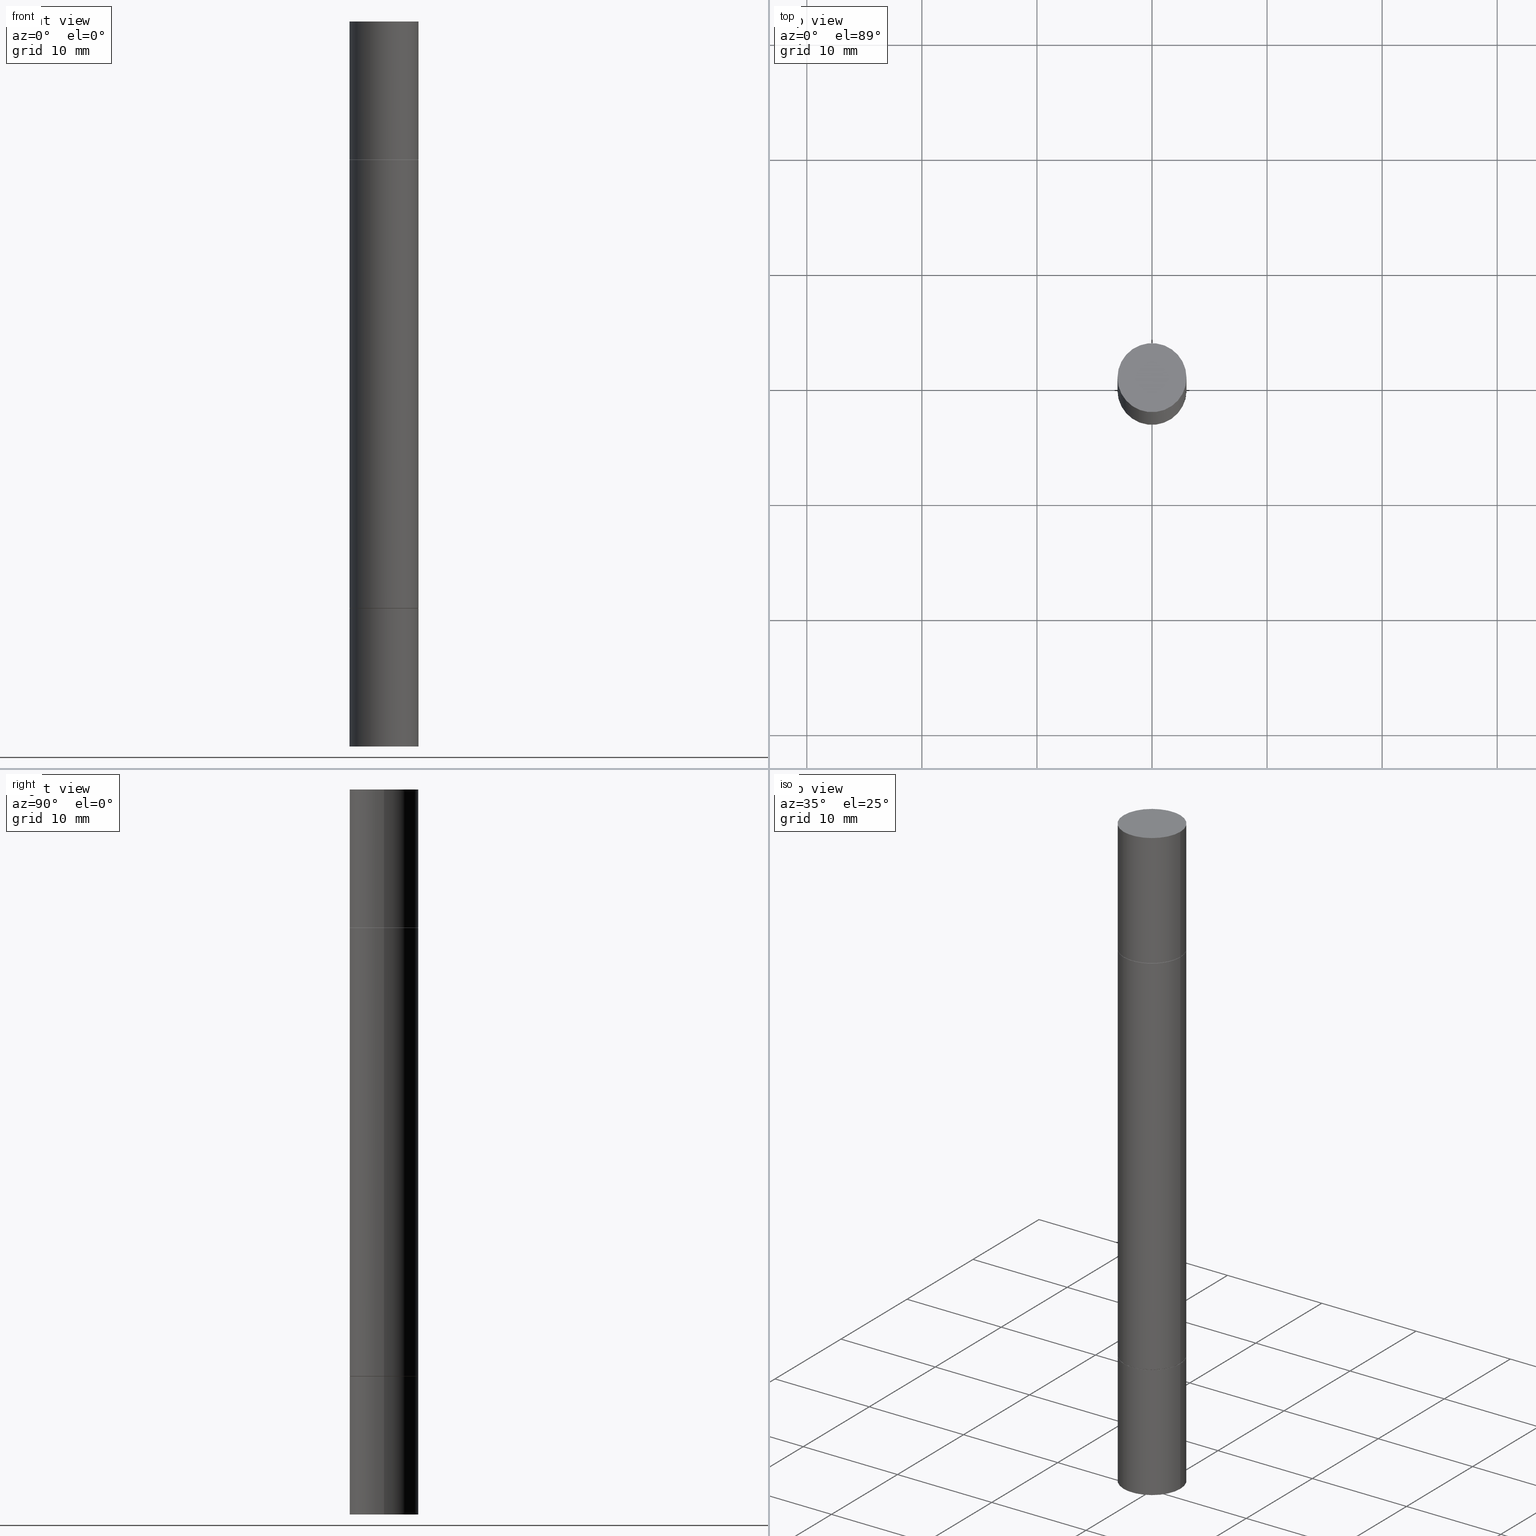
[diagram: canonical four-view strip — front | top / right | iso, engineering-drawing reading convention]
A machine part, canonical four-view strip (front | top / right | iso — engineering-drawing reading convention). The complete STEP part file that produces these views, byte-faithful:
ISO-10303-21;
HEADER;
FILE_DESCRIPTION (( 'STEP AP203' ),
    '1' );
FILE_NAME ('49019.STEP',
    '2024-03-04T15:50:55',
    ( '' ),
    ( '' ),
    'SwSTEP 2.0',
    'SolidWorks 2023',
    '' );
FILE_SCHEMA (( 'CONFIG_CONTROL_DESIGN' ));
ENDSEC;

DATA;
#1 = VERTEX_POINT ( 'NONE', #504 ) ;
#2 = CARTESIAN_POINT ( 'NONE',  ( 0.1180999999999999966, -7.831741791159056177E-15, -2.006899999999999906 ) ) ;
#3 = EDGE_CURVE ( 'NONE', #177, #436, #296, .T. ) ;
#4 = APPROVAL_ROLE ( '' ) ;
#5 = CIRCLE ( 'NONE', #286, 0.1180999999999999966 ) ;
#6 = CARTESIAN_POINT ( 'NONE',  ( 4.910256815939135870E-29, -7.010545380263151710E-15, -2.007899999999999796 ) ) ;
#7 = ORIENTED_EDGE ( 'NONE', *, *, #26, .T. ) ;
#8 = FACE_OUTER_BOUND ( 'NONE', #413, .T. ) ;
#9 = VERTEX_POINT ( 'NONE', #351 ) ;
#10 = AXIS2_PLACEMENT_3D ( 'NONE', #563, #81, #341 ) ;
#11 = APPROVAL_DATE_TIME ( #218, #265 ) ;
#12 = ORIENTED_EDGE ( 'NONE', *, *, #242, .T. ) ;
#13 = EDGE_CURVE ( 'NONE', #575, #223, #309, .T. ) ;
#14 = CARTESIAN_POINT ( 'NONE',  ( 0.000000000000000000, -8.661668626252231138E-15, -2.480299999999999727 ) ) ;
#15 = CARTESIAN_POINT ( 'NONE',  ( 8.246878922348086105E-16, 0.1180999999999913369, -2.480300000000001059 ) ) ;
#16 = ORIENTED_EDGE ( 'NONE', *, *, #170, .T. ) ;
#17 = VECTOR ( 'NONE', #569, 39.37007874015748143 ) ;
#18 = CARTESIAN_POINT ( 'NONE',  ( 0.1180999999999998856, -3.815561613072418896E-15, -1.240149999999999864 ) ) ;
#19 = DIRECTION ( 'NONE',  ( -2.445468806185136877E-29, -3.492890411551753071E-15, -1.000000000000000000 ) ) ;
#20 = ORIENTED_EDGE ( 'NONE', *, *, #366, .T. ) ;
#21 = DIRECTION ( 'NONE',  ( -2.445468806185136597E-29, 3.491481338843145583E-15, 1.000000000000000000 ) ) ;
#22 = ORIENTED_EDGE ( 'NONE', *, *, #353, .T. ) ;
#23 = EDGE_CURVE ( 'NONE', #625, #557, #329, .T. ) ;
#24 = CIRCLE ( 'NONE', #551, 0.1170999999999999958 ) ;
#25 = DIRECTION ( 'NONE',  ( 0.7071067811866199593, -7.407546758114499403E-15, -0.7071067811864750752 ) ) ;
#26 = EDGE_CURVE ( 'NONE', #1, #449, #138, .T. ) ;
#27 = CIRCLE ( 'NONE', #614, 0.1180999999999999966 ) ;
#28 = CC_DESIGN_APPROVAL ( #284, ( #502 ) ) ;
#29 = DATE_AND_TIME ( #40, #624 ) ;
#30 = CARTESIAN_POINT ( 'NONE',  ( 0.1180999999999999966, -9.486356518486979401E-15, -2.480299999999999727 ) ) ;
#31 = LINE ( 'NONE', #243, #192 ) ;
#32 = AXIS2_PLACEMENT_3D ( 'NONE', #302, #405, #258 ) ;
#33 = CARTESIAN_POINT ( 'NONE',  ( 0.1180999999999999966, -7.835233272497900762E-15, -2.007900000000000240 ) ) ;
#34 = AXIS2_PLACEMENT_3D ( 'NONE', #495, #21, #183 ) ;
#35 = DIRECTION ( 'NONE',  ( 2.438088387897960049E-29, -3.491481338843145188E-15, -1.000000000000000000 ) ) ;
#36 = DIRECTION ( 'NONE',  ( 1.000000000000000000, -6.982962677686265133E-15, 0.000000000000000000 ) ) ;
#37 = CARTESIAN_POINT ( 'NONE',  ( 4.910256815939136430E-29, -1.648293968897467768E-15, -0.4723999999999995980 ) ) ;
#38 = LINE ( 'NONE', #577, #335 ) ;
#39 = DIRECTION ( 'NONE',  ( 1.000000000000000000, -6.982962677686266711E-15, 4.876176775795936353E-29 ) ) ;
#40 = CALENDAR_DATE ( 2024, 4, 3 ) ;
#41 = DIRECTION ( 'NONE',  ( 1.000000000000000000, -6.982962677686265922E-15, 9.839502134516470631E-33 ) ) ;
#42 = VERTEX_POINT ( 'NONE', #397 ) ;
#43 = DIRECTION ( 'NONE',  ( 1.000000000000000000, -6.982962677686271444E-15, 0.000000000000000000 ) ) ;
#44 = ADVANCED_FACE ( 'NONE', ( #97 ), #450, .T. ) ;
#45 = ORIENTED_EDGE ( 'NONE', *, *, #395, .T. ) ;
#46 = DIRECTION ( 'NONE',  ( 1.000000000000000000, -6.982962677686265133E-15, 0.000000000000000000 ) ) ;
#47 = VERTEX_POINT ( 'NONE', #293 ) ;
#48 = DIRECTION ( 'NONE',  ( 1.000000000000000000, -6.982962677686265133E-15, 0.000000000000000000 ) ) ;
#49 = DIRECTION ( 'NONE',  ( -1.000000000000000000, 6.982962677686265922E-15, -9.839502134516470631E-33 ) ) ;
#50 = ORIENTED_EDGE ( 'NONE', *, *, #383, .F. ) ;
#51 = CIRCLE ( 'NONE', #566, 0.1180999999999999966 ) ;
#52 = PRODUCT_DEFINITION ( 'UNKNOWN', '', #502, #635 ) ;
#53 = CARTESIAN_POINT ( 'NONE',  ( 0.1180999999999999966, -2.476474751543767778E-15, -0.4733999999999996544 ) ) ;
#54 = COORDINATED_UNIVERSAL_TIME_OFFSET ( 5, 0, .BEHIND. ) ;
#55 = ORIENTED_EDGE ( 'NONE', *, *, #489, .F. ) ;
#56 = APPROVAL_STATUS ( 'not_yet_approved' ) ;
#57 = AXIS2_PLACEMENT_3D ( 'NONE', #403, #408, #150 ) ;
#58 = ORIENTED_EDGE ( 'NONE', *, *, #543, .T. ) ;
#59 = DATE_AND_TIME ( #325, #337 ) ;
#60 = ORIENTED_EDGE ( 'NONE', *, *, #83, .T. ) ;
#61 = CLOSED_SHELL ( 'NONE', ( #564, #663, #561, #365 ) ) ;
#62 = CARTESIAN_POINT ( 'NONE',  ( 4.910256815939135870E-29, -7.010545380263151710E-15, -2.007899999999999796 ) ) ;
#63 = CARTESIAN_POINT ( 'NONE',  ( 6.065496279980994755E-29, 1.747461519580534218E-18, 5.463695987328526437E-16 ) ) ;
#64 = CARTESIAN_POINT ( 'NONE',  ( -0.1180999999999999966, -1.304844015212474234E-17, 5.463695987328556019E-16 ) ) ;
#65 = CC_DESIGN_PERSON_AND_ORGANIZATION_ASSIGNMENT ( #277, #420, ( #253 ) ) ;
#66 = ORIENTED_EDGE ( 'NONE', *, *, #543, .F. ) ;
#67 = MANIFOLD_SOLID_BREP ( 'Mirror1[1]', #244 ) ;
#68 = DIRECTION ( 'NONE',  ( 1.000000000000000000, -6.982962677686264344E-15, 0.000000000000000000 ) ) ;
#69 = PERSON_AND_ORGANIZATION_ROLE ( 'creator' ) ;
#70 = MANIFOLD_SOLID_BREP ( 'Combine1', #113 ) ;
#71 = DIRECTION ( 'NONE',  ( 1.000000000000000000, -6.982962677686265133E-15, 0.000000000000000000 ) ) ;
#72 = ORIENTED_EDGE ( 'NONE', *, *, #646, .F. ) ;
#73 = AXIS2_PLACEMENT_3D ( 'NONE', #651, #179, #318 ) ;
#74 = DIRECTION ( 'NONE',  ( 1.000000000000000000, -6.982962677686265133E-15, 0.000000000000000000 ) ) ;
#75 = PLANE ( 'NONE',  #178 ) ;
#76 = ORIENTED_EDGE ( 'NONE', *, *, #110, .T. ) ;
#77 = CC_DESIGN_PERSON_AND_ORGANIZATION_ASSIGNMENT ( #612, #349, ( #615 ) ) ;
#78 = ORIENTED_EDGE ( 'NONE', *, *, #373, .F. ) ;
#79 = CLOSED_SHELL ( 'NONE', ( #528, #332, #461, #44 ) ) ;
#80 = CARTESIAN_POINT ( 'NONE',  ( 0.1170999999999999958, -2.465998898454530016E-15, -0.4723999999999998756 ) ) ;
#81 = DIRECTION ( 'NONE',  ( 2.445468806185136597E-29, 3.492890411551752677E-15, 1.000000000000000000 ) ) ;
#82 = CIRCLE ( 'NONE', #324, 0.1180999999999999966 ) ;
#83 = EDGE_CURVE ( 'NONE', #223, #575, #669, .T. ) ;
#84 = CARTESIAN_POINT ( 'NONE',  ( 0.1180999999999999966, -2.472981861132215636E-15, -0.4723999999999995980 ) ) ;
#85 = PERSON_AND_ORGANIZATION ( #423, #591 ) ;
#86 = VECTOR ( 'NONE', #25, 39.37007874015748143 ) ;
#87 = DIRECTION ( 'NONE',  ( -2.445468806185136597E-29, -3.492890411551752677E-15, -1.000000000000000000 ) ) ;
#88 = APPROVAL_DATE_TIME ( #513, #120 ) ;
#89 = DIRECTION ( 'NONE',  ( 1.000000000000000000, -6.982962677686265133E-15, 0.000000000000000000 ) ) ;
#90 = DIRECTION ( 'NONE',  ( -2.445468806185136597E-29, 3.491481338843145583E-15, 1.000000000000000000 ) ) ;
#91 = CARTESIAN_POINT ( 'NONE',  ( 8.246878922348086105E-16, 0.1181000000000000105, 0.000000000000000000 ) ) ;
#92 = DIRECTION ( 'NONE',  ( -2.445468806185136877E-29, -3.492890411551753071E-15, -1.000000000000000000 ) ) ;
#93 = CIRCLE ( 'NONE', #536, 0.1180999999999999966 ) ;
#94 = DIRECTION ( 'NONE',  ( 2.438088387897959769E-29, 3.492890411551753071E-15, 1.000000000000000000 ) ) ;
#95 = LOCAL_TIME ( 10, 50, 55.00000000000000000, #161 ) ;
#96 = LINE ( 'NONE', #254, #209 ) ;
#97 = FACE_OUTER_BOUND ( 'NONE', #338, .T. ) ;
#98 = CARTESIAN_POINT ( 'NONE',  ( 0.000000000000000000, -8.661668626252231138E-15, -2.480299999999999727 ) ) ;
#99 = DIRECTION ( 'NONE',  ( 1.000000000000000000, -6.982962677686264344E-15, 0.000000000000000000 ) ) ;
#100 = CARTESIAN_POINT ( 'NONE',  ( 0.000000000000000000, -8.661668626252231138E-15, -2.480299999999999727 ) ) ;
#101 = DIRECTION ( 'NONE',  ( 1.000000000000000000, 0.000000000000000000, 0.000000000000000000 ) ) ;
#102 = CIRCLE ( 'NONE', #375, 0.1180999999999999966 ) ;
#103 = DIRECTION ( 'NONE',  ( 2.445468806185136597E-29, 3.492890411551752677E-15, 1.000000000000000000 ) ) ;
#104 = DIRECTION ( 'NONE',  ( 1.000000000000000000, -6.982962677686264344E-15, 0.000000000000000000 ) ) ;
#105 = EDGE_LOOP ( 'NONE', ( #385, #679 ) ) ;
#106 = AXIS2_PLACEMENT_3D ( 'NONE', #401, #360, #104 ) ;
#107 = FACE_OUTER_BOUND ( 'NONE', #418, .T. ) ;
#108 = LINE ( 'NONE', #355, #17 ) ;
#109 = AXIS2_PLACEMENT_3D ( 'NONE', #15, #126, #432 ) ;
#110 = EDGE_CURVE ( 'NONE', #436, #596, #51, .T. ) ;
#111 = ORIENTED_EDGE ( 'NONE', *, *, #416, .T. ) ;
#112 = ORIENTED_EDGE ( 'NONE', *, *, #395, .F. ) ;
#113 = CLOSED_SHELL ( 'NONE', ( #232, #280, #374, #333, #340, #425, #637, #568 ) ) ;
#114 = CARTESIAN_POINT ( 'NONE',  ( 0.1180999999999999966, -2.472981861132215636E-15, -0.4723999999999995980 ) ) ;
#115 = ORIENTED_EDGE ( 'NONE', *, *, #273, .F. ) ;
#116 = COORDINATED_UNIVERSAL_TIME_OFFSET ( 5, 0, .BEHIND. ) ;
#117 = AXIS2_PLACEMENT_3D ( 'NONE', #194, #103, #621 ) ;
#118 = ORIENTED_EDGE ( 'NONE', *, *, #251, .F. ) ;
#119 = DIRECTION ( 'NONE',  ( 1.000000000000000000, -6.982962677686265133E-15, 0.000000000000000000 ) ) ;
#120 = APPROVAL ( #191, 'UNSPECIFIED' ) ;
#121 = DIRECTION ( 'NONE',  ( 2.445468806185136597E-29, 3.492890411551752677E-15, 1.000000000000000000 ) ) ;
#122 = ORIENTED_EDGE ( 'NONE', *, *, #326, .T. ) ;
#123 = AXIS2_PLACEMENT_3D ( 'NONE', #516, #344, #400 ) ;
#124 = EDGE_CURVE ( 'NONE', #473, #460, #202, .T. ) ;
#125 = CARTESIAN_POINT ( 'NONE',  ( 0.000000000000000000, -8.661668626252231138E-15, -2.480299999999999727 ) ) ;
#126 = DIRECTION ( 'NONE',  ( 2.438088387897960049E-29, -3.491481338843145188E-15, -1.000000000000000000 ) ) ;
#127 = EDGE_LOOP ( 'NONE', ( #382, #352 ) ) ;
#128 = CARTESIAN_POINT ( 'NONE',  ( 0.000000000000000000, -8.661668626252231138E-15, -2.480299999999999727 ) ) ;
#129 = FACE_OUTER_BOUND ( 'NONE', #402, .T. ) ;
#130 = ORIENTED_EDGE ( 'NONE', *, *, #556, .F. ) ;
#131 = AXIS2_PLACEMENT_3D ( 'NONE', #91, #511, #252 ) ;
#132 = EDGE_CURVE ( 'NONE', #259, #177, #411, .T. ) ;
#133 = APPROVAL_PERSON_ORGANIZATION ( #648, #265, #540 ) ;
#134 = CARTESIAN_POINT ( 'NONE',  ( 4.910256815939135870E-29, -1.648293968897468754E-15, -0.4723999999999998756 ) ) ;
#135 = CONICAL_SURFACE ( 'NONE', #106, 0.1170999999999999958, 0.7853981633975507526 ) ;
#136 = VECTOR ( 'NONE', #616, 39.37007874015748143 ) ;
#137 = DIRECTION ( 'NONE',  ( 2.445468806185136597E-29, 3.492890411551752677E-15, 1.000000000000000000 ) ) ;
#138 = LINE ( 'NONE', #245, #584 ) ;
#139 = CONICAL_SURFACE ( 'NONE', #315, 0.1170999999999999958, 0.7853981633975507526 ) ;
#140 = PERSON_AND_ORGANIZATION_ROLE ( 'creator' ) ;
#141 = DIRECTION ( 'NONE',  ( -2.445468806185136597E-29, -3.492890411551752677E-15, -1.000000000000000000 ) ) ;
#142 = APPLICATION_PROTOCOL_DEFINITION ( 'international standard', 'config_control_design', 1994, #510 ) ;
#143 = EDGE_LOOP ( 'NONE', ( #247, #464, #66, #631 ) ) ;
#144 = CARTESIAN_POINT ( 'NONE',  ( -0.1181000000000000105, -3.519735768829505001E-15, -2.006899999999999906 ) ) ;
#145 = CARTESIAN_POINT ( 'NONE',  ( -0.1180999999999998856, -7.851443812715415176E-15, -2.480299999999999727 ) ) ;
#146 = VERTEX_POINT ( 'NONE', #84 ) ;
#147 = DIRECTION ( 'NONE',  ( -2.445468806185136877E-29, -3.492890411551753071E-15, -1.000000000000000000 ) ) ;
#148 = EDGE_CURVE ( 'NONE', #619, #146, #102, .T. ) ;
#149 = CIRCLE ( 'NONE', #117, 0.1170999999999999958 ) ;
#150 = DIRECTION ( 'NONE',  ( 1.000000000000000000, -6.982962677686265922E-15, 4.876176775795935793E-29 ) ) ;
#151 = LINE ( 'NONE', #145, #570 ) ;
#152 = FACE_OUTER_BOUND ( 'NONE', #578, .T. ) ;
#153 = DIRECTION ( 'NONE',  ( 0.7071067811866199593, -7.407546758114499403E-15, -0.7071067811864750752 ) ) ;
#154 = ORIENTED_EDGE ( 'NONE', *, *, #439, .T. ) ;
#155 = DIRECTION ( 'NONE',  ( -1.000000000000000000, 6.982962677686265922E-15, -9.839502134516470631E-33 ) ) ;
#156 = DIRECTION ( 'NONE',  ( 2.445468806185136597E-29, 3.492890411551752677E-15, 1.000000000000000000 ) ) ;
#157 = ADVANCED_FACE ( 'NONE', ( #129 ), #75, .F. ) ;
#158 = DIRECTION ( 'NONE',  ( 2.445468806185136597E-29, 3.492890411551752677E-15, 1.000000000000000000 ) ) ;
#159 = AXIS2_PLACEMENT_3D ( 'NONE', #667, #94, #155 ) ;
#160 = DIRECTION ( 'NONE',  ( 1.000000000000000000, -6.982962677686271444E-15, 0.000000000000000000 ) ) ;
#161 = COORDINATED_UNIVERSAL_TIME_OFFSET ( 5, 0, .BEHIND. ) ;
#162 = ORIENTED_EDGE ( 'NONE', *, *, #384, .T. ) ;
#163 = CARTESIAN_POINT ( 'NONE',  ( 4.907811347132950827E-29, -1.651786859309018332E-15, -0.4733999999999996544 ) ) ;
#164 = VERTEX_POINT ( 'NONE', #234 ) ;
#165 = VECTOR ( 'NONE', #657, 39.37007874015748143 ) ;
#166 = DATE_TIME_ROLE ( 'creation_date' ) ;
#167 = CARTESIAN_POINT ( 'NONE',  ( 4.910256815939135870E-29, -1.648293968897468754E-15, -0.4723999999999998756 ) ) ;
#168 = CARTESIAN_POINT ( 'NONE',  ( 4.910256815939136430E-29, -7.010545380263152499E-15, -2.007900000000000240 ) ) ;
#169 = ORIENTED_EDGE ( 'NONE', *, *, #366, .F. ) ;
#170 = EDGE_CURVE ( 'NONE', #515, #535, #544, .T. ) ;
#171 = DIRECTION ( 'NONE',  ( 1.000000000000000000, -6.982962677686266711E-15, 0.000000000000000000 ) ) ;
#172 = AXIS2_PLACEMENT_3D ( 'NONE', #98, #307, #43 ) ;
#173 = DIRECTION ( 'NONE',  ( 1.000000000000000000, -6.982962677686264344E-15, 0.000000000000000000 ) ) ;
#174 = ORIENTED_EDGE ( 'NONE', *, *, #428, .T. ) ;
#175 = CYLINDRICAL_SURFACE ( 'NONE', #272, 0.1180999999999998856 ) ;
#176 = PERSON_AND_ORGANIZATION ( #423, #591 ) ;
#177 = VERTEX_POINT ( 'NONE', #652 ) ;
#178 = AXIS2_PLACEMENT_3D ( 'NONE', #289, #548, #336 ) ;
#179 = DIRECTION ( 'NONE',  ( 2.438088387897959769E-29, 3.492890411551753071E-15, 1.000000000000000000 ) ) ;
#180 = VECTOR ( 'NONE', #392, 39.37007874015748143 ) ;
#181 = EDGE_CURVE ( 'NONE', #557, #625, #507, .T. ) ;
#182 = ORIENTED_EDGE ( 'NONE', *, *, #221, .T. ) ;
#183 = DIRECTION ( 'NONE',  ( 1.000000000000000000, -6.982962677686264344E-15, 0.000000000000000000 ) ) ;
#184 = EDGE_LOOP ( 'NONE', ( #499, #590, #496, #275 ) ) ;
#185 = AXIS2_PLACEMENT_3D ( 'NONE', #196, #517, #455 ) ;
#186 = LINE ( 'NONE', #246, #180 ) ;
#187 = EDGE_LOOP ( 'NONE', ( #593, #182, #314, #643 ) ) ;
#188 = SHAPE_DEFINITION_REPRESENTATION ( #672, #310 ) ;
#189 = ADVANCED_FACE ( 'NONE', ( #281 ), #555, .T. ) ;
#190 = EDGE_CURVE ( 'NONE', #424, #9, #558, .T. ) ;
#191 = APPROVAL_STATUS ( 'not_yet_approved' ) ;
#192 = VECTOR ( 'NONE', #345, 39.37007874015748143 ) ;
#193 = CC_DESIGN_APPROVAL ( #265, ( #52 ) ) ;
#194 = CARTESIAN_POINT ( 'NONE',  ( 4.910256815939135870E-29, -1.648293968897468754E-15, -0.4723999999999998756 ) ) ;
#195 = LINE ( 'NONE', #399, #136 ) ;
#196 = CARTESIAN_POINT ( 'NONE',  ( 0.000000000000000000, 0.000000000000000000, 0.000000000000000000 ) ) ;
#197 = AXIS2_PLACEMENT_3D ( 'NONE', #520, #357, #571 ) ;
#198 = CC_DESIGN_PERSON_AND_ORGANIZATION_ASSIGNMENT ( #85, #305, ( #502 ) ) ;
#199 = PLANE ( 'NONE',  #159 ) ;
#200 = CARTESIAN_POINT ( 'NONE',  ( 8.246878922348086105E-16, 0.1181000000000000105, 0.000000000000000000 ) ) ;
#201 = EDGE_CURVE ( 'NONE', #164, #473, #559, .T. ) ;
#202 = LINE ( 'NONE', #442, #165 ) ;
#203 = AXIS2_PLACEMENT_3D ( 'NONE', #37, #457, #212 ) ;
#204 = AXIS2_PLACEMENT_3D ( 'NONE', #579, #300, #519 ) ;
#205 = CARTESIAN_POINT ( 'NONE',  ( 0.000000000000000000, -8.661668626252231138E-15, -2.480299999999999727 ) ) ;
#206 = LINE ( 'NONE', #626, #580 ) ;
#207 = CYLINDRICAL_SURFACE ( 'NONE', #185, 0.1180999999999999966 ) ;
#208 = CARTESIAN_POINT ( 'NONE',  ( 4.907811347132950827E-29, -1.651786859309018332E-15, -0.4733999999999996544 ) ) ;
#209 = VECTOR ( 'NONE', #237, 39.37007874015748143 ) ;
#210 = ORIENTED_EDGE ( 'NONE', *, *, #148, .T. ) ;
#211 = ADVANCED_FACE ( 'NONE', ( #421 ), #472, .T. ) ;
#212 = DIRECTION ( 'NONE',  ( 1.000000000000000000, -6.982962677686265133E-15, 0.000000000000000000 ) ) ;
#213 = AXIS2_PLACEMENT_3D ( 'NONE', #347, #90, #675 ) ;
#214 = LOCAL_TIME ( 10, 50, 55.00000000000000000, #301 ) ;
#215 = FACE_OUTER_BOUND ( 'NONE', #380, .T. ) ;
#216 = ORIENTED_EDGE ( 'NONE', *, *, #416, .F. ) ;
#217 = CARTESIAN_POINT ( 'NONE',  ( 0.000000000000000000, -8.661668626252231138E-15, -2.480299999999999727 ) ) ;
#218 = DATE_AND_TIME ( #480, #554 ) ;
#219 =( NAMED_UNIT ( * ) SI_UNIT ( $, .STERADIAN. ) SOLID_ANGLE_UNIT ( ) );
#220 = EDGE_LOOP ( 'NONE', ( #229, #50, #7, #58 ) ) ;
#221 = EDGE_CURVE ( 'NONE', #259, #596, #96, .T. ) ;
#222 = CARTESIAN_POINT ( 'NONE',  ( 0.1180999999999999966, -9.486356518486979401E-15, -2.480299999999999727 ) ) ;
#223 = VERTEX_POINT ( 'NONE', #441 ) ;
#224 = DIRECTION ( 'NONE',  ( -2.445468806185136597E-29, -3.492890411551752677E-15, -1.000000000000000000 ) ) ;
#225 = AXIS2_PLACEMENT_3D ( 'NONE', #163, #419, #119 ) ;
#226 = UNCERTAINTY_MEASURE_WITH_UNIT (LENGTH_MEASURE( 1.000000000000000082E-05 ), #541, 'distance_accuracy_value', 'NONE');
#227 = DIRECTION ( 'NONE',  ( -0.7071067811866199593, 2.381258160592016740E-15, -0.7071067811864750752 ) ) ;
#228 = MANIFOLD_SOLID_BREP ( 'Mirror1[4]', #79 ) ;
#229 = ORIENTED_EDGE ( 'NONE', *, *, #170, .F. ) ;
#230 = PLANE ( 'NONE',  #73 ) ;
#231 = ORIENTED_EDGE ( 'NONE', *, *, #201, .F. ) ;
#232 = ADVANCED_FACE ( 'NONE', ( #501 ), #377, .T. ) ;
#233 = ORIENTED_EDGE ( 'NONE', *, *, #445, .F. ) ;
#234 = CARTESIAN_POINT ( 'NONE',  ( 0.1170999999999999958, -2.465998898454530016E-15, -0.4723999999999998756 ) ) ;
#235 = VERTEX_POINT ( 'NONE', #33 ) ;
#236 = EDGE_CURVE ( 'NONE', #255, #535, #186, .T. ) ;
#237 = DIRECTION ( 'NONE',  ( -2.445468806185136877E-29, -3.492890411551753071E-15, -1.000000000000000000 ) ) ;
#238 = CONICAL_SURFACE ( 'NONE', #677, 0.1170999999999999958, 0.7853981633975507526 ) ;
#239 = FACE_OUTER_BOUND ( 'NONE', #105, .T. ) ;
#240 = APPROVAL_ROLE ( '' ) ;
#241 = DIRECTION ( 'NONE',  ( 2.445468806185136597E-29, 3.492890411551752677E-15, 1.000000000000000000 ) ) ;
#242 = EDGE_CURVE ( 'NONE', #535, #449, #617, .T. ) ;
#243 = CARTESIAN_POINT ( 'NONE',  ( 0.1170999999999999958, -7.828250309820213170E-15, -2.007899999999999796 ) ) ;
#244 = CLOSED_SHELL ( 'NONE', ( #448, #508, #157, #609, #211, #582 ) ) ;
#245 = CARTESIAN_POINT ( 'NONE',  ( 0.1180999999999998856, -9.486356518486979401E-15, -2.480299999999999727 ) ) ;
#246 = CARTESIAN_POINT ( 'NONE',  ( -0.1170999999999999958, -6.178499836688074522E-15, -2.007899999999999796 ) ) ;
#247 = ORIENTED_EDGE ( 'NONE', *, *, #527, .T. ) ;
#248 = VECTOR ( 'NONE', #227, 39.37007874015748143 ) ;
#249 = CIRCLE ( 'NONE', #225, 0.1180999999999999966 ) ;
#250 = CYLINDRICAL_SURFACE ( 'NONE', #465, 0.1180999999999999966 ) ;
#251 = EDGE_CURVE ( 'NONE', #424, #235, #195, .T. ) ;
#252 = DIRECTION ( 'NONE',  ( -1.000000000000000000, 6.982962677686265922E-15, -9.839502134516470631E-33 ) ) ;
#253 = PRODUCT ( '49019', '49019', '', ( #427 ) ) ;
#254 = CARTESIAN_POINT ( 'NONE',  ( -0.1180999999999999966, -7.851443812715413599E-15, -2.480299999999999727 ) ) ;
#255 = VERTEX_POINT ( 'NONE', #567 ) ;
#256 = FACE_OUTER_BOUND ( 'NONE', #521, .T. ) ;
#257 = DATE_TIME_ROLE ( 'classification_date' ) ;
#258 = DIRECTION ( 'NONE',  ( 1.000000000000000000, -6.982962677686264344E-15, 0.000000000000000000 ) ) ;
#259 = VERTEX_POINT ( 'NONE', #512 ) ;
#260 = FACE_OUTER_BOUND ( 'NONE', #608, .T. ) ;
#261 = CARTESIAN_POINT ( 'NONE',  ( 4.910256815939136430E-29, -7.010545380263152499E-15, -2.007900000000000240 ) ) ;
#262 = CIRCLE ( 'NONE', #343, 0.1180999999999999966 ) ;
#263 = CYLINDRICAL_SURFACE ( 'NONE', #172, 0.1180999999999998856 ) ;
#264 = ORIENTED_EDGE ( 'NONE', *, *, #556, .T. ) ;
#265 = APPROVAL ( #56, 'UNSPECIFIED' ) ;
#266 = DIRECTION ( 'NONE',  ( -2.438088387897959769E-29, -3.492890411551753071E-15, -1.000000000000000000 ) ) ;
#267 = AXIS2_PLACEMENT_3D ( 'NONE', #389, #604, #339 ) ;
#268 = CIRCLE ( 'NONE', #572, 0.1180999999999999966 ) ;
#269 = CALENDAR_DATE ( 2024, 4, 3 ) ;
#270 = APPLICATION_CONTEXT ( 'configuration controlled 3d designs of mechanical parts and assemblies' ) ;
#271 = ORIENTED_EDGE ( 'NONE', *, *, #148, .F. ) ;
#272 = AXIS2_PLACEMENT_3D ( 'NONE', #125, #330, #547 ) ;
#273 = EDGE_CURVE ( 'NONE', #146, #619, #611, .T. ) ;
#274 =( NAMED_UNIT ( * ) PLANE_ANGLE_UNIT ( ) SI_UNIT ( $, .RADIAN. ) );
#275 = ORIENTED_EDGE ( 'NONE', *, *, #242, .F. ) ;
#276 = CYLINDRICAL_SURFACE ( 'NONE', #477, 0.1180999999999998856 ) ;
#277 = PERSON_AND_ORGANIZATION ( #423, #591 ) ;
#278 = ORIENTED_EDGE ( 'NONE', *, *, #588, .F. ) ;
#279 = DIRECTION ( 'NONE',  ( -2.445468806185136597E-29, 3.491481338843145583E-15, 1.000000000000000000 ) ) ;
#280 = ADVANCED_FACE ( 'NONE', ( #152 ), #361, .T. ) ;
#281 = FACE_OUTER_BOUND ( 'NONE', #187, .T. ) ;
#282 = DIRECTION ( 'NONE',  ( -0.000000000000000000, -3.492185875197449130E-15, -1.000000000000000000 ) ) ;
#283 = ORIENTED_EDGE ( 'NONE', *, *, #251, .T. ) ;
#284 = APPROVAL ( #583, 'UNSPECIFIED' ) ;
#285 = CARTESIAN_POINT ( 'NONE',  ( -0.1170999999999999958, -8.449296533584223333E-16, -0.4723999999999998756 ) ) ;
#286 = AXIS2_PLACEMENT_3D ( 'NONE', #478, #538, #431 ) ;
#287 = ORIENTED_EDGE ( 'NONE', *, *, #23, .F. ) ;
#288 = DIRECTION ( 'NONE',  ( 1.000000000000000000, -6.982962677686264344E-15, 0.000000000000000000 ) ) ;
#289 = CARTESIAN_POINT ( 'NONE',  ( 0.000000000000000000, 0.000000000000000000, -1.240149999999999864 ) ) ;
#290 = ORIENTED_EDGE ( 'NONE', *, *, #110, .F. ) ;
#291 = CARTESIAN_POINT ( 'NONE',  ( -0.1180999999999999966, -8.415620457722018772E-16, -0.4733999999999996544 ) ) ;
#292 = CIRCLE ( 'NONE', #204, 0.1180999999999998856 ) ;
#293 = CARTESIAN_POINT ( 'NONE',  ( -0.1180999999999999966, -8.415620457722018772E-16, -0.4733999999999996544 ) ) ;
#294 = APPROVAL_PERSON_ORGANIZATION ( #587, #284, #4 ) ;
#295 = VERTEX_POINT ( 'NONE', #479 ) ;
#296 = LINE ( 'NONE', #30, #297 ) ;
#297 = VECTOR ( 'NONE', #147, 39.37007874015748143 ) ;
#298 = CARTESIAN_POINT ( 'NONE',  ( 4.910256815939135870E-29, -7.010545380263151710E-15, -2.007899999999999796 ) ) ;
#299 = FACE_OUTER_BOUND ( 'NONE', #127, .T. ) ;
#300 = DIRECTION ( 'NONE',  ( -0.000000000000000000, -3.492185875197449130E-15, -1.000000000000000000 ) ) ;
#301 = COORDINATED_UNIVERSAL_TIME_OFFSET ( 5, 0, .BEHIND. ) ;
#302 = CARTESIAN_POINT ( 'NONE',  ( 4.910256815939135870E-29, -1.648293968897468754E-15, -0.4723999999999998756 ) ) ;
#303 = PLANE ( 'NONE',  #602 ) ;
#304 = CARTESIAN_POINT ( 'NONE',  ( 4.910256815939136430E-29, -1.648293968897467768E-15, -0.4723999999999995980 ) ) ;
#305 = PERSON_AND_ORGANIZATION_ROLE ( 'design_supplier' ) ;
#306 = DIRECTION ( 'NONE',  ( 1.000000000000000000, -6.982962677686265133E-15, 0.000000000000000000 ) ) ;
#307 = DIRECTION ( 'NONE',  ( -2.445468806185136597E-29, -3.492890411551752677E-15, -1.000000000000000000 ) ) ;
#308 = CARTESIAN_POINT ( 'NONE',  ( 4.907811347132950827E-29, -1.651786859309018332E-15, -0.4733999999999996544 ) ) ;
#309 = CIRCLE ( 'NONE', #10, 0.1170999999999999958 ) ;
#310 = ADVANCED_BREP_SHAPE_REPRESENTATION ( '49019', ( #526, #67, #529, #228, #70, #415 ), #466 ) ;
#311 = ORIENTED_EDGE ( 'NONE', *, *, #588, .T. ) ;
#312 = FACE_OUTER_BOUND ( 'NONE', #636, .T. ) ;
#313 = DIRECTION ( 'NONE',  ( -2.445468806185136597E-29, 3.491481338843145583E-15, 1.000000000000000000 ) ) ;
#314 = ORIENTED_EDGE ( 'NONE', *, *, #489, .T. ) ;
#315 = AXIS2_PLACEMENT_3D ( 'NONE', #6, #481, #173 ) ;
#316 = CARTESIAN_POINT ( 'NONE',  ( -0.1180999999999999966, -1.304844015212474234E-17, -0.4723999999999995980 ) ) ;
#317 = CYLINDRICAL_SURFACE ( 'NONE', #437, 0.1180999999999999966 ) ;
#318 = DIRECTION ( 'NONE',  ( -1.000000000000000000, 6.982962677686265922E-15, -9.839502134516470631E-33 ) ) ;
#319 = ORIENTED_EDGE ( 'NONE', *, *, #458, .F. ) ;
#320 = CC_DESIGN_PERSON_AND_ORGANIZATION_ASSIGNMENT ( #176, #69, ( #52 ) ) ;
#321 = LINE ( 'NONE', #285, #662 ) ;
#322 = PLANE ( 'NONE',  #109 ) ;
#323 = ORIENTED_EDGE ( 'NONE', *, *, #539, .T. ) ;
#324 = AXIS2_PLACEMENT_3D ( 'NONE', #391, #137, #334 ) ;
#325 = CALENDAR_DATE ( 2024, 4, 3 ) ;
#326 = EDGE_CURVE ( 'NONE', #575, #515, #378, .T. ) ;
#327 = ORIENTED_EDGE ( 'NONE', *, *, #458, .T. ) ;
#328 = VERTEX_POINT ( 'NONE', #549 ) ;
#329 = CIRCLE ( 'NONE', #197, 0.1180999999999999966 ) ;
#330 = DIRECTION ( 'NONE',  ( -2.445468806185136597E-29, -3.492890411551752677E-15, -1.000000000000000000 ) ) ;
#331 = ORIENTED_EDGE ( 'NONE', *, *, #435, .F. ) ;
#332 = ADVANCED_FACE ( 'NONE', ( #239 ), #671, .T. ) ;
#333 = ADVANCED_FACE ( 'NONE', ( #404 ), #410, .F. ) ;
#334 = DIRECTION ( 'NONE',  ( 1.000000000000000000, -6.982962677686265133E-15, 0.000000000000000000 ) ) ;
#335 = VECTOR ( 'NONE', #354, 39.37007874015748143 ) ;
#336 = DIRECTION ( 'NONE',  ( 0.000000000000000000, 1.000000000000000000, -3.492185875197449524E-15 ) ) ;
#337 = LOCAL_TIME ( 10, 50, 55.00000000000000000, #116 ) ;
#338 = EDGE_LOOP ( 'NONE', ( #553, #492, #372, #586 ) ) ;
#339 = DIRECTION ( 'NONE',  ( 1.000000000000000000, -6.982962677686273021E-15, 0.000000000000000000 ) ) ;
#340 = ADVANCED_FACE ( 'NONE', ( #618 ), #135, .T. ) ;
#341 = DIRECTION ( 'NONE',  ( 1.000000000000000000, -6.982962677686264344E-15, 0.000000000000000000 ) ) ;
#342 = AXIS2_PLACEMENT_3D ( 'NONE', #168, #589, #485 ) ;
#343 = AXIS2_PLACEMENT_3D ( 'NONE', #585, #595, #475 ) ;
#344 = DIRECTION ( 'NONE',  ( 2.445468806185136597E-29, 3.492890411551752677E-15, 1.000000000000000000 ) ) ;
#345 = DIRECTION ( 'NONE',  ( 0.7071067811866199593, -2.468850131083015945E-15, 0.7071067811864750752 ) ) ;
#346 = ORIENTED_EDGE ( 'NONE', *, *, #3, .T. ) ;
#347 = CARTESIAN_POINT ( 'NONE',  ( 4.907811347132950827E-29, -7.007053898924308703E-15, -2.006899999999999906 ) ) ;
#348 = DIRECTION ( 'NONE',  ( 1.000000000000000000, -6.982962677686264344E-15, 0.000000000000000000 ) ) ;
#349 = PERSON_AND_ORGANIZATION_ROLE ( 'classification_officer' ) ;
#350 = ORIENTED_EDGE ( 'NONE', *, *, #620, .F. ) ;
#351 = CARTESIAN_POINT ( 'NONE',  ( -0.1180999999999999966, -6.996082301565225720E-15, -2.480300000000000171 ) ) ;
#352 = ORIENTED_EDGE ( 'NONE', *, *, #629, .T. ) ;
#353 = EDGE_CURVE ( 'NONE', #42, #164, #24, .T. ) ;
#354 = DIRECTION ( 'NONE',  ( -2.445468806185136877E-29, -3.492890411551753071E-15, -1.000000000000000000 ) ) ;
#355 = CARTESIAN_POINT ( 'NONE',  ( -0.1180999999999999966, 8.391509709326782957E-16, -5.809262341591043784E-30 ) ) ;
#356 = COORDINATED_UNIVERSAL_TIME_OFFSET ( 5, 0, .BEHIND. ) ;
#357 = DIRECTION ( 'NONE',  ( 2.445468806185136597E-29, 3.492890411551752677E-15, 1.000000000000000000 ) ) ;
#358 = CIRCLE ( 'NONE', #213, 0.1180999999999999966 ) ;
#359 = CARTESIAN_POINT ( 'NONE',  ( -0.1170999999999999958, -8.432458495653122039E-16, -0.4723999999999998756 ) ) ;
#360 = DIRECTION ( 'NONE',  ( -2.445468806185136597E-29, -3.492890411551752677E-15, -1.000000000000000000 ) ) ;
#361 = CYLINDRICAL_SURFACE ( 'NONE', #429, 0.1180999999999998856 ) ;
#362 = CARTESIAN_POINT ( 'NONE',  ( 0.000000000000000000, 0.000000000000000000, 0.000000000000000000 ) ) ;
#363 = CARTESIAN_POINT ( 'NONE',  ( 8.246878922347970734E-16, 0.1180999999999929745, -2.007900000000000684 ) ) ;
#364 = CARTESIAN_POINT ( 'NONE',  ( 0.1180999999999999966, -9.484609056967403598E-15, -2.480300000000000171 ) ) ;
#365 = ADVANCED_FACE ( 'NONE', ( #622 ), #317, .T. ) ;
#366 = EDGE_CURVE ( 'NONE', #47, #473, #268, .T. ) ;
#367 = DIRECTION ( 'NONE',  ( 1.000000000000000000, -6.982962677686265133E-15, 0.000000000000000000 ) ) ;
#368 = EDGE_LOOP ( 'NONE', ( #406, #122, #311, #216 ) ) ;
#369 = CONICAL_SURFACE ( 'NONE', #414, 0.1170999999999999958, 0.7853981633975507526 ) ;
#370 = PLANE ( 'NONE',  #131 ) ;
#371 = EDGE_CURVE ( 'NONE', #235, #409, #93, .T. ) ;
#372 = ORIENTED_EDGE ( 'NONE', *, *, #435, .T. ) ;
#373 = EDGE_CURVE ( 'NONE', #47, #295, #151, .T. ) ;
#374 = ADVANCED_FACE ( 'NONE', ( #467 ), #238, .T. ) ;
#375 = AXIS2_PLACEMENT_3D ( 'NONE', #505, #649, #594 ) ;
#376 = ORIENTED_EDGE ( 'NONE', *, *, #13, .T. ) ;
#377 = CONICAL_SURFACE ( 'NONE', #546, 0.1170999999999999958, 0.7853981633975507526 ) ;
#378 = LINE ( 'NONE', #486, #248 ) ;
#379 = DIRECTION ( 'NONE',  ( -2.445468806185136597E-29, -3.492890411551752677E-15, -1.000000000000000000 ) ) ;
#380 = EDGE_LOOP ( 'NONE', ( #638, #674 ) ) ;
#381 = VECTOR ( 'NONE', #422, 39.37007874015748143 ) ;
#382 = ORIENTED_EDGE ( 'NONE', *, *, #371, .T. ) ;
#383 = EDGE_CURVE ( 'NONE', #1, #515, #388, .T. ) ;
#384 = EDGE_CURVE ( 'NONE', #9, #409, #108, .T. ) ;
#385 = ORIENTED_EDGE ( 'NONE', *, *, #181, .T. ) ;
#386 = ORIENTED_EDGE ( 'NONE', *, *, #527, .F. ) ;
#387 = FACE_OUTER_BOUND ( 'NONE', #601, .T. ) ;
#388 = CIRCLE ( 'NONE', #552, 0.1180999999999999966 ) ;
#389 = CARTESIAN_POINT ( 'NONE',  ( 6.065496279980994755E-29, -8.659921164732655335E-15, -2.480300000000000171 ) ) ;
#390 = ORIENTED_EDGE ( 'NONE', *, *, #439, .F. ) ;
#391 = CARTESIAN_POINT ( 'NONE',  ( 4.910256815939136430E-29, -1.648293968897467768E-15, -0.4723999999999995980 ) ) ;
#392 = DIRECTION ( 'NONE',  ( -0.7071067811866199593, 7.493145998870616062E-15, 0.7071067811864750752 ) ) ;
#393 = AXIS2_PLACEMENT_3D ( 'NONE', #666, #565, #306 ) ;
#394 = CC_DESIGN_DATE_AND_TIME_ASSIGNMENT ( #641, #166, ( #52 ) ) ;
#395 = EDGE_CURVE ( 'NONE', #460, #295, #292, .T. ) ;
#396 = AXIS2_PLACEMENT_3D ( 'NONE', #599, #282, #430 ) ;
#397 = CARTESIAN_POINT ( 'NONE',  ( -0.1170999999999999958, -8.432458495653122039E-16, -0.4723999999999998756 ) ) ;
#398 = AXIS2_PLACEMENT_3D ( 'NONE', #304, #676, #456 ) ;
#399 = CARTESIAN_POINT ( 'NONE',  ( 0.1180999999999999966, -8.246878922347480654E-16, 5.758764772215000440E-30 ) ) ;
#400 = DIRECTION ( 'NONE',  ( 1.000000000000000000, -6.982962677686266711E-15, 0.000000000000000000 ) ) ;
#401 = CARTESIAN_POINT ( 'NONE',  ( 4.910256815939135870E-29, -1.648293968897468754E-15, -0.4723999999999998756 ) ) ;
#402 = EDGE_LOOP ( 'NONE', ( #45, #494 ) ) ;
#403 = CARTESIAN_POINT ( 'NONE',  ( 4.910256815939136430E-29, -7.010545380263152499E-15, -2.007900000000000240 ) ) ;
#404 = FACE_OUTER_BOUND ( 'NONE', #433, .T. ) ;
#405 = DIRECTION ( 'NONE',  ( 2.445468806185136597E-29, 3.492890411551752677E-15, 1.000000000000000000 ) ) ;
#406 = ORIENTED_EDGE ( 'NONE', *, *, #13, .F. ) ;
#407 = ADVANCED_FACE ( 'NONE', ( #256 ), #370, .T. ) ;
#408 = DIRECTION ( 'NONE',  ( -2.438088387897960049E-29, 3.491481338843145188E-15, 1.000000000000000000 ) ) ;
#409 = VERTEX_POINT ( 'NONE', #463 ) ;
#410 = PLANE ( 'NONE',  #398 ) ;
#411 = CIRCLE ( 'NONE', #123, 0.1180999999999999966 ) ;
#412 = DIRECTION ( 'NONE',  ( -2.445468806185136597E-29, 3.491481338843145583E-15, 1.000000000000000000 ) ) ;
#413 = EDGE_LOOP ( 'NONE', ( #115, #271 ) ) ;
#414 = AXIS2_PLACEMENT_3D ( 'NONE', #134, #438, #288 ) ;
#415 = AXIS2_PLACEMENT_3D ( 'NONE', #362, #574, #101 ) ;
#416 = EDGE_CURVE ( 'NONE', #223, #1, #206, .T. ) ;
#417 =( LENGTH_UNIT ( ) NAMED_UNIT ( * ) SI_UNIT ( $, .METRE. ) );
#418 = EDGE_LOOP ( 'NONE', ( #264, #22 ) ) ;
#419 = DIRECTION ( 'NONE',  ( 2.445468806185136597E-29, 3.492890411551752677E-15, 1.000000000000000000 ) ) ;
#420 = PERSON_AND_ORGANIZATION_ROLE ( 'design_owner' ) ;
#421 = FACE_OUTER_BOUND ( 'NONE', #600, .T. ) ;
#422 = DIRECTION ( 'NONE',  ( -2.445468806185136877E-29, -3.492890411551753071E-15, -1.000000000000000000 ) ) ;
#423 = PERSON ( 'UNSPECIFIED', 'UNSPECIFIED', 'UNSPECIFIED', ('UNSPECIFIED'), ('UNSPECIFIED'), ('UNSPECIFIED') ) ;
#424 = VERTEX_POINT ( 'NONE', #364 ) ;
#425 = ADVANCED_FACE ( 'NONE', ( #474 ), #276, .T. ) ;
#426 = CIRCLE ( 'NONE', #396, 0.1180999999999998856 ) ;
#427 = MECHANICAL_CONTEXT ( 'NONE', #510, 'mechanical' ) ;
#428 = EDGE_CURVE ( 'NONE', #9, #424, #5, .T. ) ;
#429 = AXIS2_PLACEMENT_3D ( 'NONE', #100, #633, #160 ) ;
#430 = DIRECTION ( 'NONE',  ( 0.000000000000000000, 1.000000000000000000, -4.626330217890374069E-15 ) ) ;
#431 = DIRECTION ( 'NONE',  ( 1.000000000000000000, -6.982962677686273021E-15, 0.000000000000000000 ) ) ;
#432 = DIRECTION ( 'NONE',  ( -1.000000000000000000, 6.982962677686265922E-15, -4.876176775795935793E-29 ) ) ;
#433 = EDGE_LOOP ( 'NONE', ( #60, #376 ) ) ;
#434 = EDGE_LOOP ( 'NONE', ( #660, #350, #346, #76 ) ) ;
#435 = EDGE_CURVE ( 'NONE', #557, #146, #592, .T. ) ;
#436 = VERTEX_POINT ( 'NONE', #114 ) ;
#437 = AXIS2_PLACEMENT_3D ( 'NONE', #471, #313, #39 ) ;
#438 = DIRECTION ( 'NONE',  ( -2.445468806185136597E-29, -3.492890411551752677E-15, -1.000000000000000000 ) ) ;
#439 = EDGE_CURVE ( 'NONE', #473, #47, #249, .T. ) ;
#440 = AXIS2_PLACEMENT_3D ( 'NONE', #128, #613, #74 ) ;
#441 = CARTESIAN_POINT ( 'NONE',  ( 0.1170999999999999958, -2.465998898454530016E-15, -0.4723999999999998756 ) ) ;
#442 = CARTESIAN_POINT ( 'NONE',  ( 0.1180999999999998856, -9.486356518486979401E-15, -2.480299999999999727 ) ) ;
#443 = PERSON_AND_ORGANIZATION ( #423, #591 ) ;
#444 = ORIENTED_EDGE ( 'NONE', *, *, #353, .F. ) ;
#445 = EDGE_CURVE ( 'NONE', #255, #328, #500, .T. ) ;
#446 = DIRECTION ( 'NONE',  ( 1.000000000000000000, -6.982962677686265133E-15, 0.000000000000000000 ) ) ;
#447 = DIRECTION ( 'NONE',  ( -2.445468806185136597E-29, 3.491481338843145583E-15, 1.000000000000000000 ) ) ;
#448 = ADVANCED_FACE ( 'NONE', ( #490 ), #175, .T. ) ;
#449 = VERTEX_POINT ( 'NONE', #2 ) ;
#450 = CYLINDRICAL_SURFACE ( 'NONE', #393, 0.1180999999999999966 ) ;
#451 = FACE_OUTER_BOUND ( 'NONE', #488, .T. ) ;
#452 = CARTESIAN_POINT ( 'NONE',  ( 4.910256815939135870E-29, -1.648293968897468754E-15, -0.4723999999999998756 ) ) ;
#453 = ORIENTED_EDGE ( 'NONE', *, *, #26, .F. ) ;
#454 = VECTOR ( 'NONE', #19, 39.37007874015748143 ) ;
#455 = DIRECTION ( 'NONE',  ( 1.000000000000000000, -6.982962677686266711E-15, 4.876176775795936353E-29 ) ) ;
#456 = DIRECTION ( 'NONE',  ( 1.000000000000000000, -6.982962677686265922E-15, 9.839502134516470631E-33 ) ) ;
#457 = DIRECTION ( 'NONE',  ( 2.445468806185136597E-29, 3.492890411551752677E-15, 1.000000000000000000 ) ) ;
#458 = EDGE_CURVE ( 'NONE', #42, #47, #321, .T. ) ;
#459 = CARTESIAN_POINT ( 'NONE',  ( 4.910256815939136430E-29, -1.648293968897467768E-15, -0.4723999999999995980 ) ) ;
#460 = VERTEX_POINT ( 'NONE', #18 ) ;
#461 = ADVANCED_FACE ( 'NONE', ( #8 ), #230, .F. ) ;
#462 = DIRECTION ( 'NONE',  ( 2.445468806185136597E-29, 3.492890411551752677E-15, 1.000000000000000000 ) ) ;
#463 = CARTESIAN_POINT ( 'NONE',  ( -0.1180999999999999966, -6.996082301565225720E-15, -2.007900000000000240 ) ) ;
#464 = ORIENTED_EDGE ( 'NONE', *, *, #236, .T. ) ;
#465 = AXIS2_PLACEMENT_3D ( 'NONE', #205, #141, #446 ) ;
#466 =( GEOMETRIC_REPRESENTATION_CONTEXT ( 3 ) GLOBAL_UNCERTAINTY_ASSIGNED_CONTEXT ( ( #226 ) ) GLOBAL_UNIT_ASSIGNED_CONTEXT ( ( #541, #274, #219 ) ) REPRESENTATION_CONTEXT ( 'NONE', 'WORKASPACE' ) );
#467 = FACE_OUTER_BOUND ( 'NONE', #368, .T. ) ;
#468 = ORIENTED_EDGE ( 'NONE', *, *, #371, .F. ) ;
#469 = PRODUCT_RELATED_PRODUCT_CATEGORY ( 'detail', '', ( #253 ) ) ;
#470 = PLANE ( 'NONE',  #560 ) ;
#471 = CARTESIAN_POINT ( 'NONE',  ( 0.000000000000000000, 0.000000000000000000, 0.000000000000000000 ) ) ;
#472 = CONICAL_SURFACE ( 'NONE', #576, 0.1170999999999999958, 0.7853981633975507526 ) ;
#473 = VERTEX_POINT ( 'NONE', #53 ) ;
#474 = FACE_OUTER_BOUND ( 'NONE', #220, .T. ) ;
#475 = DIRECTION ( 'NONE',  ( 1.000000000000000000, -6.982962677686266711E-15, 0.000000000000000000 ) ) ;
#476 = ORIENTED_EDGE ( 'NONE', *, *, #373, .T. ) ;
#477 = AXIS2_PLACEMENT_3D ( 'NONE', #217, #224, #597 ) ;
#478 = CARTESIAN_POINT ( 'NONE',  ( 6.065496279980994755E-29, -8.659921164732655335E-15, -2.480300000000000171 ) ) ;
#479 = CARTESIAN_POINT ( 'NONE',  ( -0.1180999999999998856, -2.180648907300854672E-15, -1.240149999999999864 ) ) ;
#480 = CALENDAR_DATE ( 2024, 4, 3 ) ;
#481 = DIRECTION ( 'NONE',  ( -2.445468806185136597E-29, 3.491481338843145583E-15, 1.000000000000000000 ) ) ;
#482 = ORIENTED_EDGE ( 'NONE', *, *, #326, .F. ) ;
#483 = APPROVAL_DATE_TIME ( #59, #284 ) ;
#484 = AXIS2_PLACEMENT_3D ( 'NONE', #63, #121, #171 ) ;
#485 = DIRECTION ( 'NONE',  ( 1.000000000000000000, -6.982962677686265133E-15, 0.000000000000000000 ) ) ;
#486 = CARTESIAN_POINT ( 'NONE',  ( -0.1170999999999999958, -8.449296533584223333E-16, -0.4723999999999998756 ) ) ;
#487 = CC_DESIGN_PERSON_AND_ORGANIZATION_ASSIGNMENT ( #443, #140, ( #502 ) ) ;
#488 = EDGE_LOOP ( 'NONE', ( #656, #162, #468, #118 ) ) ;
#489 = EDGE_CURVE ( 'NONE', #596, #436, #82, .T. ) ;
#490 = FACE_OUTER_BOUND ( 'NONE', #627, .T. ) ;
#491 = CARTESIAN_POINT ( 'NONE',  ( -0.1180999999999999966, -1.304844015212474234E-17, -0.4723999999999995980 ) ) ;
#492 = ORIENTED_EDGE ( 'NONE', *, *, #181, .F. ) ;
#493 = DIRECTION ( 'NONE',  ( -0.7071067811866199593, 2.381258160592016740E-15, -0.7071067811864750752 ) ) ;
#494 = ORIENTED_EDGE ( 'NONE', *, *, #646, .T. ) ;
#495 = CARTESIAN_POINT ( 'NONE',  ( 4.910256815939135870E-29, -7.010545380263151710E-15, -2.007899999999999796 ) ) ;
#496 = ORIENTED_EDGE ( 'NONE', *, *, #498, .T. ) ;
#497 = CARTESIAN_POINT ( 'NONE',  ( -0.1180999999999998856, -7.851443812715415176E-15, -2.480299999999999727 ) ) ;
#498 = EDGE_CURVE ( 'NONE', #328, #449, #31, .T. ) ;
#499 = ORIENTED_EDGE ( 'NONE', *, *, #236, .F. ) ;
#500 = CIRCLE ( 'NONE', #623, 0.1170999999999999958 ) ;
#501 = FACE_OUTER_BOUND ( 'NONE', #143, .T. ) ;
#502 = PRODUCT_DEFINITION_FORMATION_WITH_SPECIFIED_SOURCE ( 'ANY', '', #253, .NOT_KNOWN. ) ;
#503 = PERSON_AND_ORGANIZATION ( #423, #591 ) ;
#504 = CARTESIAN_POINT ( 'NONE',  ( 0.1180999999999999966, -2.476474751543767778E-15, -0.4733999999999996544 ) ) ;
#505 = CARTESIAN_POINT ( 'NONE',  ( 4.910256815939136430E-29, -1.648293968897467768E-15, -0.4723999999999995980 ) ) ;
#506 = ADVANCED_FACE ( 'NONE', ( #658 ), #661, .T. ) ;
#507 = CIRCLE ( 'NONE', #484, 0.1180999999999999966 ) ;
#508 = ADVANCED_FACE ( 'NONE', ( #655 ), #369, .T. ) ;
#509 = DIRECTION ( 'NONE',  ( -2.445468806185136597E-29, 3.491481338843145583E-15, 1.000000000000000000 ) ) ;
#510 = APPLICATION_CONTEXT ( 'configuration controlled 3d designs of mechanical parts and assemblies' ) ;
#511 = DIRECTION ( 'NONE',  ( 2.438088387897959769E-29, 3.492890411551753071E-15, 1.000000000000000000 ) ) ;
#512 = CARTESIAN_POINT ( 'NONE',  ( -0.1180999999999999966, -1.304844015212474234E-17, 5.463695987328556019E-16 ) ) ;
#513 = DATE_AND_TIME ( #673, #214 ) ;
#514 = APPROVAL_PERSON_ORGANIZATION ( #503, #120, #240 ) ;
#515 = VERTEX_POINT ( 'NONE', #291 ) ;
#516 = CARTESIAN_POINT ( 'NONE',  ( 6.065496279980994755E-29, 1.747461519580534218E-18, 5.463695987328526437E-16 ) ) ;
#517 = DIRECTION ( 'NONE',  ( -2.445468806185136597E-29, 3.491481338843145583E-15, 1.000000000000000000 ) ) ;
#518 = CC_DESIGN_DATE_AND_TIME_ASSIGNMENT ( #29, #257, ( #615 ) ) ;
#519 = DIRECTION ( 'NONE',  ( 0.000000000000000000, 1.000000000000000000, -4.626330217890374069E-15 ) ) ;
#520 = CARTESIAN_POINT ( 'NONE',  ( 6.065496279980994755E-29, 1.747461519580534218E-18, 5.463695987328526437E-16 ) ) ;
#521 = EDGE_LOOP ( 'NONE', ( #598, #605 ) ) ;
#522 = CARTESIAN_POINT ( 'NONE',  ( 0.1180999999999999966, -8.229404307151675296E-16, 5.463695987328526437E-16 ) ) ;
#523 = DIRECTION ( 'NONE',  ( -2.445468806185136597E-29, -3.492890411551752677E-15, -1.000000000000000000 ) ) ;
#524 = DIRECTION ( 'NONE',  ( -1.000000000000000000, 6.982962677686265922E-15, -4.876176775795935793E-29 ) ) ;
#525 = DIRECTION ( 'NONE',  ( 2.445468806185136597E-29, 3.492890411551752677E-15, 1.000000000000000000 ) ) ;
#526 = MANIFOLD_SOLID_BREP ( 'Body-Move/Copy2[1]', #61 ) ;
#527 = EDGE_CURVE ( 'NONE', #328, #255, #634, .T. ) ;
#528 = ADVANCED_FACE ( 'NONE', ( #387 ), #250, .T. ) ;
#529 = MANIFOLD_SOLID_BREP ( 'Mirror1[3]', #628 ) ;
#530 = CARTESIAN_POINT ( 'NONE',  ( 4.910256815939136430E-29, -1.648293968897467768E-15, -0.4723999999999995980 ) ) ;
#531 = ADVANCED_FACE ( 'NONE', ( #312 ), #199, .F. ) ;
#532 = ORIENTED_EDGE ( 'NONE', *, *, #124, .T. ) ;
#533 = ORIENTED_EDGE ( 'NONE', *, *, #201, .T. ) ;
#534 = APPLICATION_PROTOCOL_DEFINITION ( 'international standard', 'config_control_design', 1994, #270 ) ;
#535 = VERTEX_POINT ( 'NONE', #144 ) ;
#536 = AXIS2_PLACEMENT_3D ( 'NONE', #261, #412, #46 ) ;
#537 = CC_DESIGN_SECURITY_CLASSIFICATION ( #615, ( #502 ) ) ;
#538 = DIRECTION ( 'NONE',  ( -2.445468806185136597E-29, 3.491481338843145583E-15, 1.000000000000000000 ) ) ;
#539 = EDGE_CURVE ( 'NONE', #625, #619, #38, .T. ) ;
#540 = APPROVAL_ROLE ( '' ) ;
#541 =( CONVERSION_BASED_UNIT ( 'INCH', #653 ) LENGTH_UNIT ( ) NAMED_UNIT ( #645 ) );
#542 = ORIENTED_EDGE ( 'NONE', *, *, #384, .F. ) ;
#543 = EDGE_CURVE ( 'NONE', #449, #535, #358, .T. ) ;
#544 = LINE ( 'NONE', #497, #454 ) ;
#545 = ORIENTED_EDGE ( 'NONE', *, *, #83, .F. ) ;
#546 = AXIS2_PLACEMENT_3D ( 'NONE', #298, #509, #348 ) ;
#547 = DIRECTION ( 'NONE',  ( 1.000000000000000000, -6.982962677686271444E-15, 0.000000000000000000 ) ) ;
#548 = DIRECTION ( 'NONE',  ( 0.000000000000000000, 3.492185875197449524E-15, 1.000000000000000000 ) ) ;
#549 = CARTESIAN_POINT ( 'NONE',  ( 0.1170999999999999958, -7.828250309820213170E-15, -2.007899999999999796 ) ) ;
#550 = ORIENTED_EDGE ( 'NONE', *, *, #629, .F. ) ;
#551 = AXIS2_PLACEMENT_3D ( 'NONE', #452, #156, #99 ) ;
#552 = AXIS2_PLACEMENT_3D ( 'NONE', #208, #158, #367 ) ;
#553 = ORIENTED_EDGE ( 'NONE', *, *, #539, .F. ) ;
#554 = LOCAL_TIME ( 10, 50, 55.00000000000000000, #54 ) ;
#555 = CYLINDRICAL_SURFACE ( 'NONE', #639, 0.1180999999999999966 ) ;
#556 = EDGE_CURVE ( 'NONE', #164, #42, #149, .T. ) ;
#557 = VERTEX_POINT ( 'NONE', #522 ) ;
#558 = CIRCLE ( 'NONE', #267, 0.1180999999999999966 ) ;
#559 = LINE ( 'NONE', #80, #86 ) ;
#560 = AXIS2_PLACEMENT_3D ( 'NONE', #530, #266, #41 ) ;
#561 = ADVANCED_FACE ( 'NONE', ( #299 ), #303, .F. ) ;
#562 = DIRECTION ( 'NONE',  ( 1.000000000000000000, -6.982962677686264344E-15, 0.000000000000000000 ) ) ;
#563 = CARTESIAN_POINT ( 'NONE',  ( 4.910256815939135870E-29, -1.648293968897468754E-15, -0.4723999999999998756 ) ) ;
#564 = ADVANCED_FACE ( 'NONE', ( #451 ), #207, .T. ) ;
#565 = DIRECTION ( 'NONE',  ( -2.445468806185136597E-29, -3.492890411551752677E-15, -1.000000000000000000 ) ) ;
#566 = AXIS2_PLACEMENT_3D ( 'NONE', #459, #241, #89 ) ;
#567 = CARTESIAN_POINT ( 'NONE',  ( -0.1170999999999999958, -6.173201382339852908E-15, -2.007899999999999796 ) ) ;
#568 = ADVANCED_FACE ( 'NONE', ( #260 ), #670, .F. ) ;
#569 = DIRECTION ( 'NONE',  ( -2.445468806185136877E-29, 3.491481338843145188E-15, 1.000000000000000000 ) ) ;
#570 = VECTOR ( 'NONE', #632, 39.37007874015748143 ) ;
#571 = DIRECTION ( 'NONE',  ( 1.000000000000000000, -6.982962677686266711E-15, 0.000000000000000000 ) ) ;
#572 = AXIS2_PLACEMENT_3D ( 'NONE', #308, #525, #36 ) ;
#573 = FACE_OUTER_BOUND ( 'NONE', #650, .T. ) ;
#574 = DIRECTION ( 'NONE',  ( 0.000000000000000000, 0.000000000000000000, 1.000000000000000000 ) ) ;
#575 = VERTEX_POINT ( 'NONE', #359 ) ;
#576 = AXIS2_PLACEMENT_3D ( 'NONE', #167, #87, #562 ) ;
#577 = CARTESIAN_POINT ( 'NONE',  ( -0.1180999999999999966, -7.851443812715413599E-15, -2.480299999999999727 ) ) ;
#578 = EDGE_LOOP ( 'NONE', ( #278, #16, #12, #453 ) ) ;
#579 = CARTESIAN_POINT ( 'NONE',  ( 3.032748139990496817E-29, -4.329960582366326879E-15, -1.240149999999999864 ) ) ;
#580 = VECTOR ( 'NONE', #153, 39.37007874015748143 ) ;
#581 = ORIENTED_EDGE ( 'NONE', *, *, #383, .T. ) ;
#582 = ADVANCED_FACE ( 'NONE', ( #573 ), #263, .T. ) ;
#583 = APPROVAL_STATUS ( 'not_yet_approved' ) ;
#584 = VECTOR ( 'NONE', #92, 39.37007874015748143 ) ;
#585 = CARTESIAN_POINT ( 'NONE',  ( 6.065496279980994755E-29, 1.747461519580534218E-18, 5.463695987328526437E-16 ) ) ;
#586 = ORIENTED_EDGE ( 'NONE', *, *, #273, .T. ) ;
#587 = PERSON_AND_ORGANIZATION ( #423, #591 ) ;
#588 = EDGE_CURVE ( 'NONE', #515, #1, #27, .T. ) ;
#589 = DIRECTION ( 'NONE',  ( -2.445468806185136597E-29, 3.491481338843145583E-15, 1.000000000000000000 ) ) ;
#590 = ORIENTED_EDGE ( 'NONE', *, *, #445, .T. ) ;
#591 = ORGANIZATION ( 'UNSPECIFIED', 'UNSPECIFIED', '' ) ;
#592 = LINE ( 'NONE', #222, #381 ) ;
#593 = ORIENTED_EDGE ( 'NONE', *, *, #132, .F. ) ;
#594 = DIRECTION ( 'NONE',  ( 1.000000000000000000, -6.982962677686265133E-15, 0.000000000000000000 ) ) ;
#595 = DIRECTION ( 'NONE',  ( 2.445468806185136597E-29, 3.492890411551752677E-15, 1.000000000000000000 ) ) ;
#596 = VERTEX_POINT ( 'NONE', #316 ) ;
#597 = DIRECTION ( 'NONE',  ( 1.000000000000000000, -6.982962677686271444E-15, 0.000000000000000000 ) ) ;
#598 = ORIENTED_EDGE ( 'NONE', *, *, #620, .T. ) ;
#599 = CARTESIAN_POINT ( 'NONE',  ( 3.032748139990496817E-29, -4.329960582366326879E-15, -1.240149999999999864 ) ) ;
#600 = EDGE_LOOP ( 'NONE', ( #319, #130, #533, #154 ) ) ;
#601 = EDGE_LOOP ( 'NONE', ( #287, #323, #210, #331 ) ) ;
#602 = AXIS2_PLACEMENT_3D ( 'NONE', #363, #35, #524 ) ;
#603 = CC_DESIGN_APPROVAL ( #120, ( #615 ) ) ;
#604 = DIRECTION ( 'NONE',  ( -2.445468806185136597E-29, 3.491481338843145583E-15, 1.000000000000000000 ) ) ;
#605 = ORIENTED_EDGE ( 'NONE', *, *, #132, .T. ) ;
#606 = ORIENTED_EDGE ( 'NONE', *, *, #124, .F. ) ;
#607 = CARTESIAN_POINT ( 'NONE',  ( 4.907811347132950827E-29, -7.007053898924308703E-15, -2.006899999999999906 ) ) ;
#608 = EDGE_LOOP ( 'NONE', ( #386, #233 ) ) ;
#609 = ADVANCED_FACE ( 'NONE', ( #107 ), #470, .F. ) ;
#610 = AXIS2_PLACEMENT_3D ( 'NONE', #607, #447, #664 ) ;
#611 = CIRCLE ( 'NONE', #203, 0.1180999999999999966 ) ;
#612 = PERSON_AND_ORGANIZATION ( #423, #591 ) ;
#613 = DIRECTION ( 'NONE',  ( -2.445468806185136597E-29, -3.492890411551752677E-15, -1.000000000000000000 ) ) ;
#614 = AXIS2_PLACEMENT_3D ( 'NONE', #678, #462, #48 ) ;
#615 = SECURITY_CLASSIFICATION ( '', '', #659 ) ;
#616 = DIRECTION ( 'NONE',  ( -2.445468806185136877E-29, 3.491481338843145188E-15, 1.000000000000000000 ) ) ;
#617 = CIRCLE ( 'NONE', #610, 0.1180999999999999966 ) ;
#618 = FACE_OUTER_BOUND ( 'NONE', #640, .T. ) ;
#619 = VERTEX_POINT ( 'NONE', #491 ) ;
#620 = EDGE_CURVE ( 'NONE', #177, #259, #262, .T. ) ;
#621 = DIRECTION ( 'NONE',  ( 1.000000000000000000, -6.982962677686264344E-15, 0.000000000000000000 ) ) ;
#622 = FACE_OUTER_BOUND ( 'NONE', #665, .T. ) ;
#623 = AXIS2_PLACEMENT_3D ( 'NONE', #62, #279, #68 ) ;
#624 = LOCAL_TIME ( 10, 50, 55.00000000000000000, #356 ) ;
#625 = VERTEX_POINT ( 'NONE', #64 ) ;
#626 = CARTESIAN_POINT ( 'NONE',  ( 0.1170999999999999958, -2.465998898454530016E-15, -0.4723999999999998756 ) ) ;
#627 = EDGE_LOOP ( 'NONE', ( #169, #476, #112, #606 ) ) ;
#628 = CLOSED_SHELL ( 'NONE', ( #189, #407, #531, #506 ) ) ;
#629 = EDGE_CURVE ( 'NONE', #409, #235, #644, .T. ) ;
#630 = DIRECTION ( 'NONE',  ( 1.000000000000000000, -6.982962677686264344E-15, 0.000000000000000000 ) ) ;
#631 = ORIENTED_EDGE ( 'NONE', *, *, #498, .F. ) ;
#632 = DIRECTION ( 'NONE',  ( -2.445468806185136877E-29, -3.492890411551753071E-15, -1.000000000000000000 ) ) ;
#633 = DIRECTION ( 'NONE',  ( -2.445468806185136597E-29, -3.492890411551752677E-15, -1.000000000000000000 ) ) ;
#634 = CIRCLE ( 'NONE', #34, 0.1170999999999999958 ) ;
#635 = DESIGN_CONTEXT ( 'detailed design', #270, 'design' ) ;
#636 = EDGE_LOOP ( 'NONE', ( #290, #55 ) ) ;
#637 = ADVANCED_FACE ( 'NONE', ( #642 ), #139, .T. ) ;
#638 = ORIENTED_EDGE ( 'NONE', *, *, #190, .F. ) ;
#639 = AXIS2_PLACEMENT_3D ( 'NONE', #14, #379, #71 ) ;
#640 = EDGE_LOOP ( 'NONE', ( #482, #545, #111, #581 ) ) ;
#641 = DATE_AND_TIME ( #269, #95 ) ;
#642 = FACE_OUTER_BOUND ( 'NONE', #184, .T. ) ;
#643 = ORIENTED_EDGE ( 'NONE', *, *, #3, .F. ) ;
#644 = CIRCLE ( 'NONE', #342, 0.1180999999999999966 ) ;
#645 = DIMENSIONAL_EXPONENTS ( 1.000000000000000000, 0.000000000000000000, 0.000000000000000000, 0.000000000000000000, 0.000000000000000000, 0.000000000000000000, 0.000000000000000000 ) ;
#646 = EDGE_CURVE ( 'NONE', #295, #460, #426, .T. ) ;
#647 = AXIS2_PLACEMENT_3D ( 'NONE', #200, #680, #49 ) ;
#648 = PERSON_AND_ORGANIZATION ( #423, #591 ) ;
#649 = DIRECTION ( 'NONE',  ( 2.445468806185136597E-29, 3.492890411551752677E-15, 1.000000000000000000 ) ) ;
#650 = EDGE_LOOP ( 'NONE', ( #78, #390, #532, #72 ) ) ;
#651 = CARTESIAN_POINT ( 'NONE',  ( 8.246878922347970734E-16, 0.1180999999999983452, -0.4723999999999998756 ) ) ;
#652 = CARTESIAN_POINT ( 'NONE',  ( 0.1180999999999999966, -8.229404307151675296E-16, 5.463695987328526437E-16 ) ) ;
#653 = LENGTH_MEASURE_WITH_UNIT ( LENGTH_MEASURE( 0.02539999999999999897 ), #417 );
#654 = EDGE_LOOP ( 'NONE', ( #444, #327, #20, #231 ) ) ;
#655 = FACE_OUTER_BOUND ( 'NONE', #654, .T. ) ;
#656 = ORIENTED_EDGE ( 'NONE', *, *, #190, .T. ) ;
#657 = DIRECTION ( 'NONE',  ( -2.445468806185136877E-29, -3.492890411551753071E-15, -1.000000000000000000 ) ) ;
#658 = FACE_OUTER_BOUND ( 'NONE', #434, .T. ) ;
#659 = SECURITY_CLASSIFICATION_LEVEL ( 'unclassified' ) ;
#660 = ORIENTED_EDGE ( 'NONE', *, *, #221, .F. ) ;
#661 = CYLINDRICAL_SURFACE ( 'NONE', #440, 0.1180999999999999966 ) ;
#662 = VECTOR ( 'NONE', #493, 39.37007874015748143 ) ;
#663 = ADVANCED_FACE ( 'NONE', ( #215 ), #322, .T. ) ;
#664 = DIRECTION ( 'NONE',  ( 1.000000000000000000, -6.982962677686265133E-15, 0.000000000000000000 ) ) ;
#665 = EDGE_LOOP ( 'NONE', ( #542, #174, #283, #550 ) ) ;
#666 = CARTESIAN_POINT ( 'NONE',  ( 0.000000000000000000, -8.661668626252231138E-15, -2.480299999999999727 ) ) ;
#667 = CARTESIAN_POINT ( 'NONE',  ( 8.246878922347970734E-16, 0.1180999999999983452, -0.4723999999999998756 ) ) ;
#668 = CARTESIAN_POINT ( 'NONE',  ( 4.910256815939135870E-29, -1.648293968897468754E-15, -0.4723999999999998756 ) ) ;
#669 = CIRCLE ( 'NONE', #32, 0.1170999999999999958 ) ;
#670 = PLANE ( 'NONE',  #57 ) ;
#671 = PLANE ( 'NONE',  #647 ) ;
#672 = PRODUCT_DEFINITION_SHAPE ( 'NONE', 'NONE',  #52 ) ;
#673 = CALENDAR_DATE ( 2024, 4, 3 ) ;
#674 = ORIENTED_EDGE ( 'NONE', *, *, #428, .F. ) ;
#675 = DIRECTION ( 'NONE',  ( 1.000000000000000000, -6.982962677686265133E-15, 0.000000000000000000 ) ) ;
#676 = DIRECTION ( 'NONE',  ( -2.438088387897959769E-29, -3.492890411551753071E-15, -1.000000000000000000 ) ) ;
#677 = AXIS2_PLACEMENT_3D ( 'NONE', #668, #523, #630 ) ;
#678 = CARTESIAN_POINT ( 'NONE',  ( 4.907811347132950827E-29, -1.651786859309018332E-15, -0.4733999999999996544 ) ) ;
#679 = ORIENTED_EDGE ( 'NONE', *, *, #23, .T. ) ;
#680 = DIRECTION ( 'NONE',  ( 2.438088387897959769E-29, 3.492890411551753071E-15, 1.000000000000000000 ) ) ;
ENDSEC;
END-ISO-10303-21;
